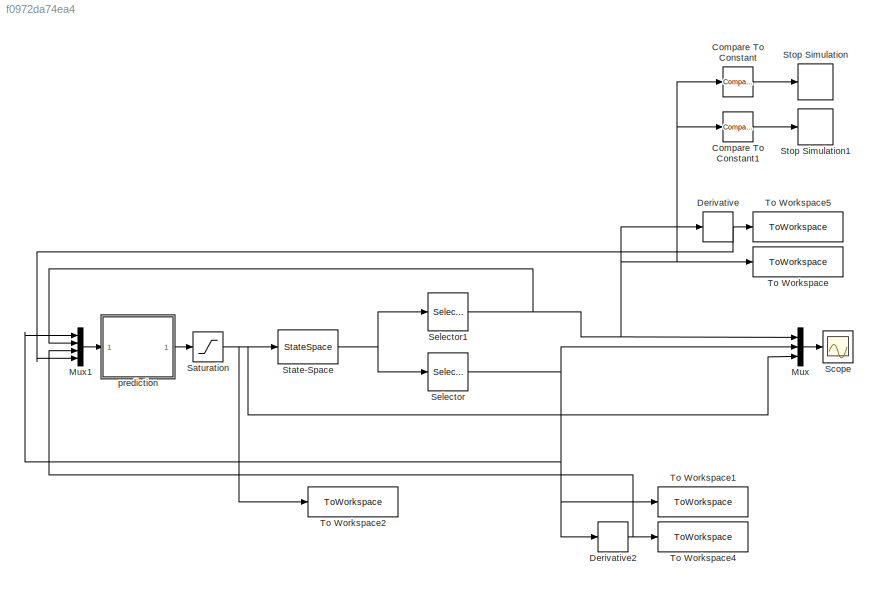
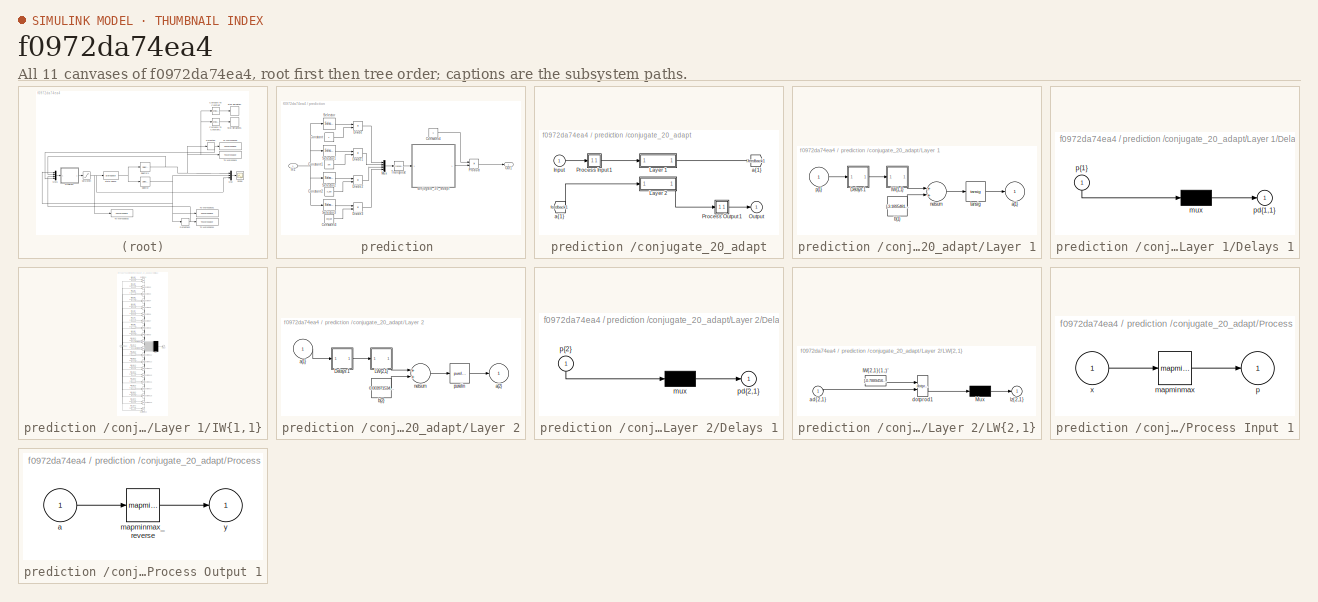
[diagram: thumbnail index - all 11 canvases of the model, root first then tree order]
MODEL slx_f0972da74ea4
KIND model
CONFIG AbsTol = auto
CONFIG EnableMultiTasking = off
CONFIG FixedStep = 0.1
CONFIG MaxStep = auto
CONFIG MinStep = auto
CONFIG RelTol = 1e-3
CONFIG SampleTimeConstraint = Unconstrained
CONFIG Solver = VariableStepAuto
CONFIG SolverName = VariableStepAuto
CONFIG StartTime = 0.0
CONFIG StopTime = 30
BLOCK [Reference] Compare To Constant  REF=simulink/Logic and Bit
Operations/Compare
To Constant
  Ports = [1, 1]
  SourceBlock = simulink/Logic and Bit\nOperations/Compare\nTo Constant
  SourceProductBaseCode = SL
  SourceProductName = Simulink
  SourceType = Compare To Constant
BLOCK [Reference] Compare To Constant1  REF=simulink/Logic and Bit
Operations/Compare
To Constant
  Ports = [1, 1]
  SourceBlock = simulink/Logic and Bit\nOperations/Compare\nTo Constant
  SourceProductBaseCode = SL
  SourceProductName = Simulink
  SourceType = Compare To Constant
BLOCK [Derivative] Derivative
BLOCK [Derivative] Derivative2
BLOCK [Mux] Mux
  DisplayOption = bar
  Inputs = 3
  Ports = [3, 1]
BLOCK [Mux] Mux1
  DisplayOption = bar
  Ports = [4, 1]
BLOCK [Saturate] Saturation
  InputPortMap = u0
  LowerLimit = -7.3704
  Ports = [1, 1]
  UpperLimit = 7.3704
BLOCK [Scope] Scope
  Floating = off
  NumInputPorts = 1
  Ports = [1]
  ScopeSpecificationString = Simulink.scopes.TimeScopeBlockCfg('CurrentConfiguration', extmgr.ConfigurationSet(extmgr.Configuration('Core','General UI',true),extmgr.Configuration('Core','Source UI',true),extmgr.Configuration('Sources','WiredSimulink',true),extmgr.Configuration('Visuals','Time Domain',true,'SerializedDisplays',{struct('MinYLimReal','-13.76424','MaxYLimReal','72.20802','YLabelReal','','MinYLimMag','0.00000','Ma...<+1497ch>
BLOCK [Selector] Selector
  IndexOptions = Index vector (dialog)
  Indices = [1]
  InputPortWidth = 2
  OutputSizes = 1
  Ports = [1, 1]
BLOCK [Selector] Selector1
  IndexOptions = Index vector (dialog)
  Indices = [2]
  InputPortWidth = 2
  OutputSizes = 1
  Ports = [1, 1]
BLOCK [StateSpace] State-Space
  A = A
  B = B
  C = C
  D = D
  InitialCondition = [0 0 -0.3 0]
  Ports = [1, 1]
BLOCK [Stop] Stop Simulation
BLOCK [Stop] Stop Simulation1
BLOCK [ToWorkspace] To Workspace
  FixptAsFi = on
  MaxDataPoints = inf
  Ports = [1]
  SampleTime = -1
  VariableName = phi
BLOCK [ToWorkspace] To Workspace1
  FixptAsFi = on
  MaxDataPoints = inf
  Ports = [1]
  SampleTime = -1
  VariableName = x
BLOCK [ToWorkspace] To Workspace2
  FixptAsFi = on
  MaxDataPoints = inf
  Ports = [1]
  SampleTime = -1
  VariableName = u
BLOCK [ToWorkspace] To Workspace4
  FixptAsFi = on
  MaxDataPoints = inf
  Ports = [1]
  SampleTime = -1
  VariableName = x_dot
BLOCK [ToWorkspace] To Workspace5
  FixptAsFi = on
  MaxDataPoints = inf
  Ports = [1]
  SampleTime = -1
  VariableName = phi_dot
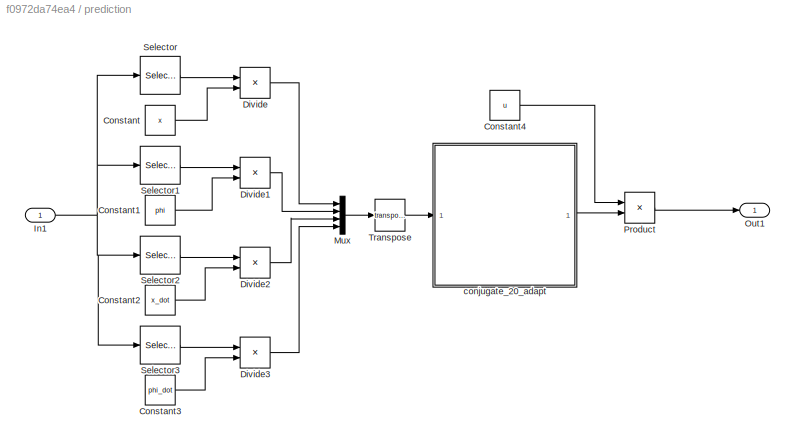
BLOCK [SubSystem] prediction 
  Ports = [1, 1]
  RequestExecContextInheritance = off
BLOCK [Constant] prediction /Constant
  Value = x
BLOCK [Constant] prediction /Constant1
  Value = phi
BLOCK [Constant] prediction /Constant2
  Value = x_dot
BLOCK [Constant] prediction /Constant3
  Value = phi_dot
BLOCK [Constant] prediction /Constant4
  Value = u
BLOCK [Product] prediction /Divide
  InputSameDT = off
  Inputs = */
  OutDataTypeStr = Inherit: Inherit via internal rule
  Ports = [2, 1]
  RndMeth = Floor
  SaturateOnIntegerOverflow = off
BLOCK [Product] prediction /Divide1
  InputSameDT = off
  Inputs = */
  OutDataTypeStr = Inherit: Inherit via internal rule
  Ports = [2, 1]
  RndMeth = Floor
  SaturateOnIntegerOverflow = off
BLOCK [Product] prediction /Divide2
  InputSameDT = off
  Inputs = */
  OutDataTypeStr = Inherit: Inherit via internal rule
  Ports = [2, 1]
  RndMeth = Floor
  SaturateOnIntegerOverflow = off
BLOCK [Product] prediction /Divide3
  InputSameDT = off
  Inputs = */
  OutDataTypeStr = Inherit: Inherit via internal rule
  Ports = [2, 1]
  RndMeth = Floor
  SaturateOnIntegerOverflow = off
BLOCK [Inport] prediction /In1
  IconDisplay = Port number
BLOCK [Mux] prediction /Mux
  DisplayOption = bar
  Ports = [4, 1]
BLOCK [Outport] prediction /Out1
  IconDisplay = Port number
BLOCK [Product] prediction /Product
  InputSameDT = off
  OutDataTypeStr = Inherit: Inherit via internal rule
  Ports = [2, 1]
  RndMeth = Floor
  SaturateOnIntegerOverflow = off
BLOCK [Selector] prediction /Selector
  IndexOptions = Index vector (dialog)
  Indices = [1]
  InputPortWidth = 4
  OutputSizes = 1
  Ports = [1, 1]
BLOCK [Selector] prediction /Selector1
  IndexOptions = Index vector (dialog)
  Indices = [2]
  InputPortWidth = 4
  OutputSizes = 1
  Ports = [1, 1]
BLOCK [Selector] prediction /Selector2
  IndexOptions = Index vector (dialog)
  Indices = [3]
  InputPortWidth = 4
  OutputSizes = 1
  Ports = [1, 1]
BLOCK [Selector] prediction /Selector3
  IndexOptions = Index vector (dialog)
  Indices = [4]
  InputPortWidth = 4
  OutputSizes = 1
  Ports = [1, 1]
BLOCK [Math] prediction /Transpose
  Operator = transpose
  Ports = [1, 1]
  SignedPower = off
BLOCK [SubSystem] prediction /conjugate_20_adapt
  Ports = [1, 1]
  RequestExecContextInheritance = off
BLOCK [From] prediction /conjugate_20_adapt/ a{1} 
  GotoTag = feedback1
BLOCK [Inport] prediction /conjugate_20_adapt/Input
  IconDisplay = Port number
  PortDimensions = 4
BLOCK [SubSystem] prediction /conjugate_20_adapt/Layer 1
  Ports = [1, 1]
  RequestExecContextInheritance = off
BLOCK [SubSystem] prediction /conjugate_20_adapt/Layer 1/Delays 1
  Ports = [1, 1]
  RequestExecContextInheritance = off
BLOCK [Mux] prediction /conjugate_20_adapt/Layer 1/Delays 1/mux
  Inputs = 1
  Ports = [1, 1]
BLOCK [Outport] prediction /conjugate_20_adapt/Layer 1/Delays 1/pd{1,1}
  IconDisplay = Port number
BLOCK [Inport] prediction /conjugate_20_adapt/Layer 1/Delays 1/p{1}
  IconDisplay = Port number
  PortDimensions = 4
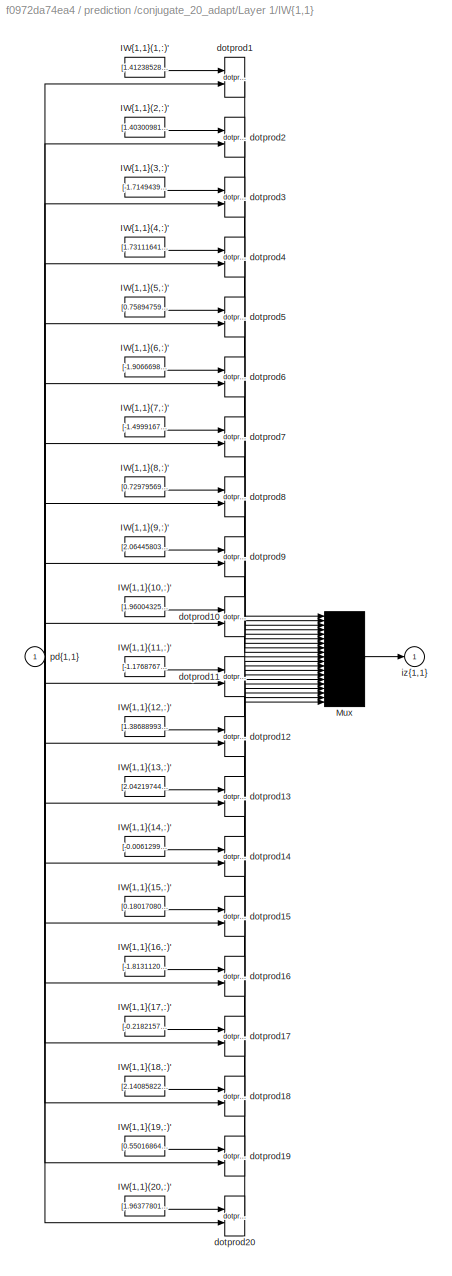
BLOCK [SubSystem] prediction /conjugate_20_adapt/Layer 1/IW{1,1}
  Ports = [1, 1]
  RequestExecContextInheritance = off
BLOCK [Constant] prediction /conjugate_20_adapt/Layer 1/IW{1,1}/IW{1,1}(1,:)'
  Value = [1.4123852893035395705823020762181840837001800537109375;1.6829822397709486292427527587278746068477630615234375;-0.2326034634085416274995594676511245779693126678466796875;1.7864244070414716514250130785512737929821014404296875]
BLOCK [Constant] prediction /conjugate_20_adapt/Layer 1/IW{1,1}/IW{1,1}(10,:)'
  Value = [1.9600432504716722714732668464421294629573822021484375;-1.4462992949855812963022572148474864661693572998046875;1.05467175541510460590188813512213528156280517578125;-1.044701134924057583930334658361971378326416015625]
BLOCK [Constant] prediction /conjugate_20_adapt/Layer 1/IW{1,1}/IW{1,1}(11,:)'
  Value = [-1.1768767170547429490312651978456415235996246337890625;1.2310869520658105358279499341733753681182861328125;-1.095826910209332094581213823403231799602508544921875;1.4690798445607564648440757082425989210605621337890625]
BLOCK [Constant] prediction /conjugate_20_adapt/Layer 1/IW{1,1}/IW{1,1}(12,:)'
  Value = [1.38688993486847511604764804360456764698028564453125;-1.8120693746193621276319163371226750314235687255859375;0.591539311304143833325497325859032571315765380859375;-1.2777031637715896561502404438215307891368865966796875]
BLOCK [Constant] prediction /conjugate_20_adapt/Layer 1/IW{1,1}/IW{1,1}(13,:)'
  Value = [2.042197446353084533399169231415726244449615478515625;-1.21731593170487695232395708444528281688690185546875;0.63463127028361243642251565688638947904109954833984375;1.491294554069237943139114577206782996654510498046875]
BLOCK [Constant] prediction /conjugate_20_adapt/Layer 1/IW{1,1}/IW{1,1}(14,:)'
  Value = [-0.006129914244302801275277037262867452227510511875152587890625;-2.156921645107012341924246356938965618610382080078125;-1.480002177565203691500528293545357882976531982421875;-1.1908403920238141981968738036812283098697662353515625]
BLOCK [Constant] prediction /conjugate_20_adapt/Layer 1/IW{1,1}/IW{1,1}(15,:)'
  Value = [0.1801708034428016469430389179251505993306636810302734375;-2.237472960304680125176446381374262273311614990234375;-1.5299184299487464944178327641566284000873565673828125;0.596736417792846030039299876079894602298736572265625]
BLOCK [Constant] prediction /conjugate_20_adapt/Layer 1/IW{1,1}/IW{1,1}(16,:)'
  Value = [-1.8131120208502837787278849646099843084812164306640625;1.703392576227913846054207169800065457820892333984375;0.08653821318912365001541076026114751584827899932861328125;-0.813045025828483147734004887752234935760498046875]
BLOCK [Constant] prediction /conjugate_20_adapt/Layer 1/IW{1,1}/IW{1,1}(17,:)'
  Value = [-0.2182157848512605025081967369260382838547229766845703125;1.276893348351074930491222403361462056636810302734375;2.251842584393390023222991658258251845836639404296875;-1.625124684680142816972647779039107263088226318359375]
BLOCK [Constant] prediction /conjugate_20_adapt/Layer 1/IW{1,1}/IW{1,1}(18,:)'
  Value = [2.14085822610860621040274054394103586673736572265625;-0.99214422381033617881485042744316160678863525390625;-0.88157374400681265402823783006169833242893218994140625;-1.33471464078851109746892689145170152187347412109375]
BLOCK [Constant] prediction /conjugate_20_adapt/Layer 1/IW{1,1}/IW{1,1}(19,:)'
  Value = [0.55016864968093937005022553421440534293651580810546875;2.778233825119577726781017190660350024700164794921875;1.0580122537423910511478197804535739123821258544921875;0.8311168802762092244762470727437175810337066650390625]
BLOCK [Constant] prediction /conjugate_20_adapt/Layer 1/IW{1,1}/IW{1,1}(2,:)'
  Value = [1.4030098132812753863873922455240972340106964111328125;-2.235081282938943036953105547581799328327178955078125;-0.86955466551557358823032473083003424108028411865234375;-1.2039207403787821615281927734031341969966888427734375]
BLOCK [Constant] prediction /conjugate_20_adapt/Layer 1/IW{1,1}/IW{1,1}(20,:)'
  Value = [1.96377801443758670529859955422580242156982421875;-1.855818808000343711483992592548020184040069580078125;-1.16515007409707305185975201311521232128143310546875;-0.09878567592639626859796209146225010044872760772705078125]
BLOCK [Constant] prediction /conjugate_20_adapt/Layer 1/IW{1,1}/IW{1,1}(3,:)'
  Value = [-1.7149439386108864535884777069441042840480804443359375;1.624112096260762694299728536861948668956756591796875;1.5514427587991670431932789142592810094356536865234375;0.1725381948818423827329837649813271127641201019287109375]
BLOCK [Constant] prediction /conjugate_20_adapt/Layer 1/IW{1,1}/IW{1,1}(4,:)'
  Value = [1.7311164152181526265650290952180512249469757080078125;1.81385435312245224537264220998622477054595947265625;1.2094526173045083705659408224164508283138275146484375;0.8169866707797057703288601260283030569553375244140625]
BLOCK [Constant] prediction /conjugate_20_adapt/Layer 1/IW{1,1}/IW{1,1}(5,:)'
  Value = [0.75894759969078873229619830453884787857532501220703125;0.59840331183818762372794708426226861774921417236328125;-1.55753025290433289029579100315459072589874267578125;2.23573379262498850295060037751682102680206298828125]
BLOCK [Constant] prediction /conjugate_20_adapt/Layer 1/IW{1,1}/IW{1,1}(6,:)'
  Value = [-1.9066698101419456978788957712822593748569488525390625;1.064403876810266158514650669530965387821197509765625;-0.251216796238207418223709055382641963660717010498046875;1.9248265242483511006099661244661547243595123291015625]
BLOCK [Constant] prediction /conjugate_20_adapt/Layer 1/IW{1,1}/IW{1,1}(7,:)'
  Value = [-1.4999167710871954550810869477572850883007049560546875;2.324580304901279870222197132534347474575042724609375;-0.260068099914359252000650712943752296268939971923828125;0.67678273163630142672531064818031154572963714599609375]
BLOCK [Constant] prediction /conjugate_20_adapt/Layer 1/IW{1,1}/IW{1,1}(8,:)'
  Value = [0.72979569424374723940474041228299029171466827392578125;-0.1129727566466618704499325076540117152035236358642578125;0.68566815898659683181648460958967916667461395263671875;-2.78545475582494272970279780565761029720306396484375]
BLOCK [Constant] prediction /conjugate_20_adapt/Layer 1/IW{1,1}/IW{1,1}(9,:)'
  Value = [2.064458038993220778678505666903220117092132568359375;0.622699890355593144164458863087929785251617431640625;1.1307548226647152755930392231675796210765838623046875;-1.5719533808892565129866625284194014966487884521484375]
BLOCK [Mux] prediction /conjugate_20_adapt/Layer 1/IW{1,1}/Mux
  Inputs = 20
  Ports = [20, 1]
BLOCK [Reference] prediction /conjugate_20_adapt/Layer 1/IW{1,1}/dotprod1  REF=neural/Weight Functions/dotprod
  Ports = [2, 1]
  SourceBlock = neural/Weight Functions/dotprod
  SourceProductBaseCode = NN
  SourceProductName = Deep Learning Toolbox
  SourceType = DOTPROD
BLOCK [Reference] prediction /conjugate_20_adapt/Layer 1/IW{1,1}/dotprod10  REF=neural/Weight Functions/dotprod
  Ports = [2, 1]
  SourceBlock = neural/Weight Functions/dotprod
  SourceProductBaseCode = NN
  SourceProductName = Deep Learning Toolbox
  SourceType = DOTPROD
BLOCK [Reference] prediction /conjugate_20_adapt/Layer 1/IW{1,1}/dotprod11  REF=neural/Weight Functions/dotprod
  Ports = [2, 1]
  SourceBlock = neural/Weight Functions/dotprod
  SourceProductBaseCode = NN
  SourceProductName = Deep Learning Toolbox
  SourceType = DOTPROD
BLOCK [Reference] prediction /conjugate_20_adapt/Layer 1/IW{1,1}/dotprod12  REF=neural/Weight Functions/dotprod
  Ports = [2, 1]
  SourceBlock = neural/Weight Functions/dotprod
  SourceProductBaseCode = NN
  SourceProductName = Deep Learning Toolbox
  SourceType = DOTPROD
BLOCK [Reference] prediction /conjugate_20_adapt/Layer 1/IW{1,1}/dotprod13  REF=neural/Weight Functions/dotprod
  Ports = [2, 1]
  SourceBlock = neural/Weight Functions/dotprod
  SourceProductBaseCode = NN
  SourceProductName = Deep Learning Toolbox
  SourceType = DOTPROD
BLOCK [Reference] prediction /conjugate_20_adapt/Layer 1/IW{1,1}/dotprod14  REF=neural/Weight Functions/dotprod
  Ports = [2, 1]
  SourceBlock = neural/Weight Functions/dotprod
  SourceProductBaseCode = NN
  SourceProductName = Deep Learning Toolbox
  SourceType = DOTPROD
BLOCK [Reference] prediction /conjugate_20_adapt/Layer 1/IW{1,1}/dotprod15  REF=neural/Weight Functions/dotprod
  Ports = [2, 1]
  SourceBlock = neural/Weight Functions/dotprod
  SourceProductBaseCode = NN
  SourceProductName = Deep Learning Toolbox
  SourceType = DOTPROD
BLOCK [Reference] prediction /conjugate_20_adapt/Layer 1/IW{1,1}/dotprod16  REF=neural/Weight Functions/dotprod
  Ports = [2, 1]
  SourceBlock = neural/Weight Functions/dotprod
  SourceProductBaseCode = NN
  SourceProductName = Deep Learning Toolbox
  SourceType = DOTPROD
BLOCK [Reference] prediction /conjugate_20_adapt/Layer 1/IW{1,1}/dotprod17  REF=neural/Weight Functions/dotprod
  Ports = [2, 1]
  SourceBlock = neural/Weight Functions/dotprod
  SourceProductBaseCode = NN
  SourceProductName = Deep Learning Toolbox
  SourceType = DOTPROD
BLOCK [Reference] prediction /conjugate_20_adapt/Layer 1/IW{1,1}/dotprod18  REF=neural/Weight Functions/dotprod
  Ports = [2, 1]
  SourceBlock = neural/Weight Functions/dotprod
  SourceProductBaseCode = NN
  SourceProductName = Deep Learning Toolbox
  SourceType = DOTPROD
BLOCK [Reference] prediction /conjugate_20_adapt/Layer 1/IW{1,1}/dotprod19  REF=neural/Weight Functions/dotprod
  Ports = [2, 1]
  SourceBlock = neural/Weight Functions/dotprod
  SourceProductBaseCode = NN
  SourceProductName = Deep Learning Toolbox
  SourceType = DOTPROD
BLOCK [Reference] prediction /conjugate_20_adapt/Layer 1/IW{1,1}/dotprod2  REF=neural/Weight Functions/dotprod
  Ports = [2, 1]
  SourceBlock = neural/Weight Functions/dotprod
  SourceProductBaseCode = NN
  SourceProductName = Deep Learning Toolbox
  SourceType = DOTPROD
BLOCK [Reference] prediction /conjugate_20_adapt/Layer 1/IW{1,1}/dotprod20  REF=neural/Weight Functions/dotprod
  Ports = [2, 1]
  SourceBlock = neural/Weight Functions/dotprod
  SourceProductBaseCode = NN
  SourceProductName = Deep Learning Toolbox
  SourceType = DOTPROD
BLOCK [Reference] prediction /conjugate_20_adapt/Layer 1/IW{1,1}/dotprod3  REF=neural/Weight Functions/dotprod
  Ports = [2, 1]
  SourceBlock = neural/Weight Functions/dotprod
  SourceProductBaseCode = NN
  SourceProductName = Deep Learning Toolbox
  SourceType = DOTPROD
BLOCK [Reference] prediction /conjugate_20_adapt/Layer 1/IW{1,1}/dotprod4  REF=neural/Weight Functions/dotprod
  Ports = [2, 1]
  SourceBlock = neural/Weight Functions/dotprod
  SourceProductBaseCode = NN
  SourceProductName = Deep Learning Toolbox
  SourceType = DOTPROD
BLOCK [Reference] prediction /conjugate_20_adapt/Layer 1/IW{1,1}/dotprod5  REF=neural/Weight Functions/dotprod
  Ports = [2, 1]
  SourceBlock = neural/Weight Functions/dotprod
  SourceProductBaseCode = NN
  SourceProductName = Deep Learning Toolbox
  SourceType = DOTPROD
BLOCK [Reference] prediction /conjugate_20_adapt/Layer 1/IW{1,1}/dotprod6  REF=neural/Weight Functions/dotprod
  Ports = [2, 1]
  SourceBlock = neural/Weight Functions/dotprod
  SourceProductBaseCode = NN
  SourceProductName = Deep Learning Toolbox
  SourceType = DOTPROD
BLOCK [Reference] prediction /conjugate_20_adapt/Layer 1/IW{1,1}/dotprod7  REF=neural/Weight Functions/dotprod
  Ports = [2, 1]
  SourceBlock = neural/Weight Functions/dotprod
  SourceProductBaseCode = NN
  SourceProductName = Deep Learning Toolbox
  SourceType = DOTPROD
BLOCK [Reference] prediction /conjugate_20_adapt/Layer 1/IW{1,1}/dotprod8  REF=neural/Weight Functions/dotprod
  Ports = [2, 1]
  SourceBlock = neural/Weight Functions/dotprod
  SourceProductBaseCode = NN
  SourceProductName = Deep Learning Toolbox
  SourceType = DOTPROD
BLOCK [Reference] prediction /conjugate_20_adapt/Layer 1/IW{1,1}/dotprod9  REF=neural/Weight Functions/dotprod
  Ports = [2, 1]
  SourceBlock = neural/Weight Functions/dotprod
  SourceProductBaseCode = NN
  SourceProductName = Deep Learning Toolbox
  SourceType = DOTPROD
BLOCK [Outport] prediction /conjugate_20_adapt/Layer 1/IW{1,1}/iz{1,1}
  IconDisplay = Port number
BLOCK [Inport] prediction /conjugate_20_adapt/Layer 1/IW{1,1}/pd{1,1}
  IconDisplay = Port number
  PortDimensions = 4
BLOCK [Outport] prediction /conjugate_20_adapt/Layer 1/a{1}
  IconDisplay = Port number
  InitialOutput = [0;0;0;0;0;0;0;0;0;0;0;0;0;0;0;0;0;0;0;0]
BLOCK [Constant] prediction /conjugate_20_adapt/Layer 1/b{1}
  Value = [-3.189548160874988713686661867541261017322540283203125;-2.65391375820820751840756202000193297863006591796875;2.492488530500696963798645811039023101329803466796875;-2.10755705482669863926048492430709302425384521484375;-1.8073368770494993018616014524013735353946685791015625;1.3652450131960127688302009119070135056972503662109375;0.8979655217262909605580034622107632458209991455078125;-0.8056495724915...<+696ch>
BLOCK [Sum] prediction /conjugate_20_adapt/Layer 1/netsum
  Inputs = 2
  Ports = [2, 1]
BLOCK [Inport] prediction /conjugate_20_adapt/Layer 1/p{1}
  IconDisplay = Port number
  PortDimensions = 4
BLOCK [Reference] prediction /conjugate_20_adapt/Layer 1/tansig  REF=neural/Transfer Functions/tansig
  Ports = [1, 1]
  SourceBlock = neural/Transfer Functions/tansig
  SourceProductBaseCode = NN
  SourceProductName = Deep Learning Toolbox
  SourceType = TANSIG
BLOCK [SubSystem] prediction /conjugate_20_adapt/Layer 2
  Ports = [1, 1]
  RequestExecContextInheritance = off
BLOCK [SubSystem] prediction /conjugate_20_adapt/Layer 2/Delays 1
  Ports = [1, 1]
  RequestExecContextInheritance = off
BLOCK [Mux] prediction /conjugate_20_adapt/Layer 2/Delays 1/mux
  Inputs = 1
  Ports = [1, 1]
BLOCK [Outport] prediction /conjugate_20_adapt/Layer 2/Delays 1/pd{2,1}
  IconDisplay = Port number
BLOCK [Inport] prediction /conjugate_20_adapt/Layer 2/Delays 1/p{2}
  IconDisplay = Port number
  PortDimensions = 20
BLOCK [SubSystem] prediction /conjugate_20_adapt/Layer 2/LW{2,1}
  Ports = [1, 1]
  RequestExecContextInheritance = off
BLOCK [Constant] prediction /conjugate_20_adapt/Layer 2/LW{2,1}/IW{2,1}(1,:)'
  Value = [-0.7889456507727405920604724087752401828765869140625;0.54917706167269297878874567686580121517181396484375;0.313037663587927783570563633475103415548801422119140625;0.045507361718834626884699900983832776546478271484375;0.231219592735422863061245379867614246904850006103515625;0.0126153376168142324076359983564543654210865497589111328125;0.03716267576398869787457357460880302824079990386962890625;0.154...<+750ch>
BLOCK [Mux] prediction /conjugate_20_adapt/Layer 2/LW{2,1}/Mux
  Inputs = 1
  Ports = [1, 1]
BLOCK [Inport] prediction /conjugate_20_adapt/Layer 2/LW{2,1}/ad{2,1}
  IconDisplay = Port number
  PortDimensions = 20
BLOCK [Reference] prediction /conjugate_20_adapt/Layer 2/LW{2,1}/dotprod1  REF=neural/Weight Functions/dotprod
  Ports = [2, 1]
  SourceBlock = neural/Weight Functions/dotprod
  SourceProductBaseCode = NN
  SourceProductName = Deep Learning Toolbox
  SourceType = DOTPROD
BLOCK [Outport] prediction /conjugate_20_adapt/Layer 2/LW{2,1}/lz{2,1}
  IconDisplay = Port number
BLOCK [Inport] prediction /conjugate_20_adapt/Layer 2/a{1} 
  IconDisplay = Port number
  PortDimensions = 20
BLOCK [Outport] prediction /conjugate_20_adapt/Layer 2/a{2}
  IconDisplay = Port number
  InitialOutput = 0
BLOCK [Constant] prediction /conjugate_20_adapt/Layer 2/b{2}
  Value = 0.003971534173962987766814958234817822813056409358978271484375
BLOCK [Sum] prediction /conjugate_20_adapt/Layer 2/netsum
  Inputs = 2
  Ports = [2, 1]
BLOCK [Reference] prediction /conjugate_20_adapt/Layer 2/purelin  REF=neural/Transfer Functions/purelin
  Ports = [1, 1]
  SourceBlock = neural/Transfer Functions/purelin
  SourceProductBaseCode = NN
  SourceProductName = Deep Learning Toolbox
  SourceType = PURELIN
BLOCK [Outport] prediction /conjugate_20_adapt/Output
  IconDisplay = Port number
  InitialOutput = 0
BLOCK [SubSystem] prediction /conjugate_20_adapt/Process Input 1
  Ports = [1, 1]
  RequestExecContextInheritance = off
BLOCK [Reference] prediction /conjugate_20_adapt/Process Input 1/mapminmax  REF=neural/Processing Functions/mapminmax
  Ports = [1, 1]
  SourceBlock = neural/Processing Functions/mapminmax
  SourceProductBaseCode = NN
  SourceProductName = Deep Learning Toolbox
  SourceType = MAPMINMAX Preprocess
BLOCK [Outport] prediction /conjugate_20_adapt/Process Input 1/p
  IconDisplay = Port number
  PortDimensions = 4
BLOCK [Inport] prediction /conjugate_20_adapt/Process Input 1/x
  IconDisplay = Port number
  PortDimensions = 4
BLOCK [SubSystem] prediction /conjugate_20_adapt/Process Output 1
  Ports = [1, 1]
  RequestExecContextInheritance = off
BLOCK [Inport] prediction /conjugate_20_adapt/Process Output 1/a
  IconDisplay = Port number
  PortDimensions = 1
BLOCK [Reference] prediction /conjugate_20_adapt/Process Output 1/mapminmax_reverse  REF=neural/Processing Functions/mapminmax_reverse
  Ports = [1, 1]
  SourceBlock = neural/Processing Functions/mapminmax_reverse
  SourceProductBaseCode = NN
  SourceProductName = Deep Learning Toolbox
  SourceType = MAPMINMAX Reverse Process
BLOCK [Outport] prediction /conjugate_20_adapt/Process Output 1/y
  IconDisplay = Port number
  PortDimensions = 1
BLOCK [Goto] prediction /conjugate_20_adapt/a{1}
  GotoTag = feedback1
LINE Compare To Constant1:1 -> Stop Simulation1:1
LINE Compare To Constant:1 -> Stop Simulation:1
NET Derivative2:1 -> Mux1:3, To Workspace4:1
NET Derivative:1 -> Mux1:4, To Workspace5:1
LINE Mux1:1 -> prediction :1
LINE Mux:1 -> Scope:1
NET Saturation:1 -> Mux:3, State-Space:1, To Workspace2:1
NET Selector1:1 -> Compare To Constant1:1, Compare To Constant:1, Derivative:1, Mux1:2, Mux:1, To Workspace:1
NET Selector:1 -> Derivative2:1, Mux1:1, Mux:2, To Workspace1:1
NET State-Space:1 -> Selector1:1, Selector:1
LINE prediction /Constant1:1 -> prediction /Divide1:2
LINE prediction /Constant2:1 -> prediction /Divide2:2
LINE prediction /Constant3:1 -> prediction /Divide3:2
LINE prediction /Constant4:1 -> prediction /Product:1
LINE prediction /Constant:1 -> prediction /Divide:2
LINE prediction /Divide1:1 -> prediction /Mux:2
LINE prediction /Divide2:1 -> prediction /Mux:3
LINE prediction /Divide3:1 -> prediction /Mux:4
LINE prediction /Divide:1 -> prediction /Mux:1
NET prediction /In1:1 -> prediction /Selector1:1, prediction /Selector2:1, prediction /Selector3:1, prediction /Selector:1
LINE prediction /Mux:1 -> prediction /Transpose:1
LINE prediction /Product:1 -> prediction /Out1:1
LINE prediction /Selector1:1 -> prediction /Divide1:1
LINE prediction /Selector2:1 -> prediction /Divide2:1
LINE prediction /Selector3:1 -> prediction /Divide3:1
LINE prediction /Selector:1 -> prediction /Divide:1
LINE prediction /Transpose:1 -> prediction /conjugate_20_adapt:1
LINE prediction /conjugate_20_adapt/ a{1} :1 -> prediction /conjugate_20_adapt/Layer 2:1
LINE prediction /conjugate_20_adapt/Input:1 -> prediction /conjugate_20_adapt/Process Input 1:1
LINE prediction /conjugate_20_adapt/Layer 1/Delays 1/mux:1 -> prediction /conjugate_20_adapt/Layer 1/Delays 1/pd{1,1}:1
LINE prediction /conjugate_20_adapt/Layer 1/Delays 1/p{1}:1 -> prediction /conjugate_20_adapt/Layer 1/Delays 1/mux:1
LINE prediction /conjugate_20_adapt/Layer 1/Delays 1:1 -> prediction /conjugate_20_adapt/Layer 1/IW{1,1}:1
LINE prediction /conjugate_20_adapt/Layer 1/IW{1,1}/IW{1,1}(1,:)':1 -> prediction /conjugate_20_adapt/Layer 1/IW{1,1}/dotprod1:1
LINE prediction /conjugate_20_adapt/Layer 1/IW{1,1}/IW{1,1}(10,:)':1 -> prediction /conjugate_20_adapt/Layer 1/IW{1,1}/dotprod10:1
LINE prediction /conjugate_20_adapt/Layer 1/IW{1,1}/IW{1,1}(11,:)':1 -> prediction /conjugate_20_adapt/Layer 1/IW{1,1}/dotprod11:1
LINE prediction /conjugate_20_adapt/Layer 1/IW{1,1}/IW{1,1}(12,:)':1 -> prediction /conjugate_20_adapt/Layer 1/IW{1,1}/dotprod12:1
LINE prediction /conjugate_20_adapt/Layer 1/IW{1,1}/IW{1,1}(13,:)':1 -> prediction /conjugate_20_adapt/Layer 1/IW{1,1}/dotprod13:1
LINE prediction /conjugate_20_adapt/Layer 1/IW{1,1}/IW{1,1}(14,:)':1 -> prediction /conjugate_20_adapt/Layer 1/IW{1,1}/dotprod14:1
LINE prediction /conjugate_20_adapt/Layer 1/IW{1,1}/IW{1,1}(15,:)':1 -> prediction /conjugate_20_adapt/Layer 1/IW{1,1}/dotprod15:1
LINE prediction /conjugate_20_adapt/Layer 1/IW{1,1}/IW{1,1}(16,:)':1 -> prediction /conjugate_20_adapt/Layer 1/IW{1,1}/dotprod16:1
LINE prediction /conjugate_20_adapt/Layer 1/IW{1,1}/IW{1,1}(17,:)':1 -> prediction /conjugate_20_adapt/Layer 1/IW{1,1}/dotprod17:1
LINE prediction /conjugate_20_adapt/Layer 1/IW{1,1}/IW{1,1}(18,:)':1 -> prediction /conjugate_20_adapt/Layer 1/IW{1,1}/dotprod18:1
LINE prediction /conjugate_20_adapt/Layer 1/IW{1,1}/IW{1,1}(19,:)':1 -> prediction /conjugate_20_adapt/Layer 1/IW{1,1}/dotprod19:1
LINE prediction /conjugate_20_adapt/Layer 1/IW{1,1}/IW{1,1}(2,:)':1 -> prediction /conjugate_20_adapt/Layer 1/IW{1,1}/dotprod2:1
LINE prediction /conjugate_20_adapt/Layer 1/IW{1,1}/IW{1,1}(20,:)':1 -> prediction /conjugate_20_adapt/Layer 1/IW{1,1}/dotprod20:1
LINE prediction /conjugate_20_adapt/Layer 1/IW{1,1}/IW{1,1}(3,:)':1 -> prediction /conjugate_20_adapt/Layer 1/IW{1,1}/dotprod3:1
LINE prediction /conjugate_20_adapt/Layer 1/IW{1,1}/IW{1,1}(4,:)':1 -> prediction /conjugate_20_adapt/Layer 1/IW{1,1}/dotprod4:1
LINE prediction /conjugate_20_adapt/Layer 1/IW{1,1}/IW{1,1}(5,:)':1 -> prediction /conjugate_20_adapt/Layer 1/IW{1,1}/dotprod5:1
LINE prediction /conjugate_20_adapt/Layer 1/IW{1,1}/IW{1,1}(6,:)':1 -> prediction /conjugate_20_adapt/Layer 1/IW{1,1}/dotprod6:1
LINE prediction /conjugate_20_adapt/Layer 1/IW{1,1}/IW{1,1}(7,:)':1 -> prediction /conjugate_20_adapt/Layer 1/IW{1,1}/dotprod7:1
LINE prediction /conjugate_20_adapt/Layer 1/IW{1,1}/IW{1,1}(8,:)':1 -> prediction /conjugate_20_adapt/Layer 1/IW{1,1}/dotprod8:1
LINE prediction /conjugate_20_adapt/Layer 1/IW{1,1}/IW{1,1}(9,:)':1 -> prediction /conjugate_20_adapt/Layer 1/IW{1,1}/dotprod9:1
LINE prediction /conjugate_20_adapt/Layer 1/IW{1,1}/Mux:1 -> prediction /conjugate_20_adapt/Layer 1/IW{1,1}/iz{1,1}:1
LINE prediction /conjugate_20_adapt/Layer 1/IW{1,1}/dotprod10:1 -> prediction /conjugate_20_adapt/Layer 1/IW{1,1}/Mux:10
LINE prediction /conjugate_20_adapt/Layer 1/IW{1,1}/dotprod11:1 -> prediction /conjugate_20_adapt/Layer 1/IW{1,1}/Mux:11
LINE prediction /conjugate_20_adapt/Layer 1/IW{1,1}/dotprod12:1 -> prediction /conjugate_20_adapt/Layer 1/IW{1,1}/Mux:12
LINE prediction /conjugate_20_adapt/Layer 1/IW{1,1}/dotprod13:1 -> prediction /conjugate_20_adapt/Layer 1/IW{1,1}/Mux:13
LINE prediction /conjugate_20_adapt/Layer 1/IW{1,1}/dotprod14:1 -> prediction /conjugate_20_adapt/Layer 1/IW{1,1}/Mux:14
LINE prediction /conjugate_20_adapt/Layer 1/IW{1,1}/dotprod15:1 -> prediction /conjugate_20_adapt/Layer 1/IW{1,1}/Mux:15
LINE prediction /conjugate_20_adapt/Layer 1/IW{1,1}/dotprod16:1 -> prediction /conjugate_20_adapt/Layer 1/IW{1,1}/Mux:16
LINE prediction /conjugate_20_adapt/Layer 1/IW{1,1}/dotprod17:1 -> prediction /conjugate_20_adapt/Layer 1/IW{1,1}/Mux:17
LINE prediction /conjugate_20_adapt/Layer 1/IW{1,1}/dotprod18:1 -> prediction /conjugate_20_adapt/Layer 1/IW{1,1}/Mux:18
LINE prediction /conjugate_20_adapt/Layer 1/IW{1,1}/dotprod19:1 -> prediction /conjugate_20_adapt/Layer 1/IW{1,1}/Mux:19
LINE prediction /conjugate_20_adapt/Layer 1/IW{1,1}/dotprod1:1 -> prediction /conjugate_20_adapt/Layer 1/IW{1,1}/Mux:1
LINE prediction /conjugate_20_adapt/Layer 1/IW{1,1}/dotprod20:1 -> prediction /conjugate_20_adapt/Layer 1/IW{1,1}/Mux:20
LINE prediction /conjugate_20_adapt/Layer 1/IW{1,1}/dotprod2:1 -> prediction /conjugate_20_adapt/Layer 1/IW{1,1}/Mux:2
LINE prediction /conjugate_20_adapt/Layer 1/IW{1,1}/dotprod3:1 -> prediction /conjugate_20_adapt/Layer 1/IW{1,1}/Mux:3
LINE prediction /conjugate_20_adapt/Layer 1/IW{1,1}/dotprod4:1 -> prediction /conjugate_20_adapt/Layer 1/IW{1,1}/Mux:4
LINE prediction /conjugate_20_adapt/Layer 1/IW{1,1}/dotprod5:1 -> prediction /conjugate_20_adapt/Layer 1/IW{1,1}/Mux:5
LINE prediction /conjugate_20_adapt/Layer 1/IW{1,1}/dotprod6:1 -> prediction /conjugate_20_adapt/Layer 1/IW{1,1}/Mux:6
LINE prediction /conjugate_20_adapt/Layer 1/IW{1,1}/dotprod7:1 -> prediction /conjugate_20_adapt/Layer 1/IW{1,1}/Mux:7
LINE prediction /conjugate_20_adapt/Layer 1/IW{1,1}/dotprod8:1 -> prediction /conjugate_20_adapt/Layer 1/IW{1,1}/Mux:8
LINE prediction /conjugate_20_adapt/Layer 1/IW{1,1}/dotprod9:1 -> prediction /conjugate_20_adapt/Layer 1/IW{1,1}/Mux:9
NET prediction /conjugate_20_adapt/Layer 1/IW{1,1}/pd{1,1}:1 -> prediction /conjugate_20_adapt/Layer 1/IW{1,1}/dotprod10:2, prediction /conjugate_20_adapt/Layer 1/IW{1,1}/dotprod11:2, prediction /conjugate_20_adapt/Layer 1/IW{1,1}/dotprod12:2, prediction /conjugate_20_adapt/Layer 1/IW{1,1}/dotprod13:2, prediction /conjugate_20_adapt/Layer 1/IW{1,1}/dotprod14:2, prediction /conjugate_20_adapt/Layer 1/IW{1,1}/dotprod15:2, prediction /conjugate_20_adapt/Layer 1/IW{1,1}/dotprod16:2, prediction /conjugate_20_adapt/Layer 1/IW{1,1}/dotprod17:2, prediction /conjugate_20_adapt/Layer 1/IW{1,1}/dotprod18:2, prediction /conjugate_20_adapt/Layer 1/IW{1,1}/dotprod19:2, prediction /conjugate_20_adapt/Layer 1/IW{1,1}/dotprod1:2, prediction /conjugate_20_adapt/Layer 1/IW{1,1}/dotprod20:2, prediction /conjugate_20_adapt/Layer 1/IW{1,1}/dotprod2:2, prediction /conjugate_20_adapt/Layer 1/IW{1,1}/dotprod3:2, prediction /conjugate_20_adapt/Layer 1/IW{1,1}/dotprod4:2, prediction /conjugate_20_adapt/Layer 1/IW{1,1}/dotprod5:2, prediction /conjugate_20_adapt/Layer 1/IW{1,1}/dotprod6:2, prediction /conjugate_20_adapt/Layer 1/IW{1,1}/dotprod7:2, prediction /conjugate_20_adapt/Layer 1/IW{1,1}/dotprod8:2, prediction /conjugate_20_adapt/Layer 1/IW{1,1}/dotprod9:2
LINE prediction /conjugate_20_adapt/Layer 1/IW{1,1}:1 -> prediction /conjugate_20_adapt/Layer 1/netsum:1
LINE prediction /conjugate_20_adapt/Layer 1/b{1}:1 -> prediction /conjugate_20_adapt/Layer 1/netsum:2
LINE prediction /conjugate_20_adapt/Layer 1/netsum:1 -> prediction /conjugate_20_adapt/Layer 1/tansig:1
LINE prediction /conjugate_20_adapt/Layer 1/p{1}:1 -> prediction /conjugate_20_adapt/Layer 1/Delays 1:1
LINE prediction /conjugate_20_adapt/Layer 1/tansig:1 -> prediction /conjugate_20_adapt/Layer 1/a{1}:1
LINE prediction /conjugate_20_adapt/Layer 1:1 -> prediction /conjugate_20_adapt/a{1}:1
LINE prediction /conjugate_20_adapt/Layer 2/Delays 1/mux:1 -> prediction /conjugate_20_adapt/Layer 2/Delays 1/pd{2,1}:1
LINE prediction /conjugate_20_adapt/Layer 2/Delays 1/p{2}:1 -> prediction /conjugate_20_adapt/Layer 2/Delays 1/mux:1
LINE prediction /conjugate_20_adapt/Layer 2/Delays 1:1 -> prediction /conjugate_20_adapt/Layer 2/LW{2,1}:1
LINE prediction /conjugate_20_adapt/Layer 2/LW{2,1}/IW{2,1}(1,:)':1 -> prediction /conjugate_20_adapt/Layer 2/LW{2,1}/dotprod1:1
LINE prediction /conjugate_20_adapt/Layer 2/LW{2,1}/Mux:1 -> prediction /conjugate_20_adapt/Layer 2/LW{2,1}/lz{2,1}:1
LINE prediction /conjugate_20_adapt/Layer 2/LW{2,1}/ad{2,1}:1 -> prediction /conjugate_20_adapt/Layer 2/LW{2,1}/dotprod1:2
LINE prediction /conjugate_20_adapt/Layer 2/LW{2,1}/dotprod1:1 -> prediction /conjugate_20_adapt/Layer 2/LW{2,1}/Mux:1
LINE prediction /conjugate_20_adapt/Layer 2/LW{2,1}:1 -> prediction /conjugate_20_adapt/Layer 2/netsum:1
LINE prediction /conjugate_20_adapt/Layer 2/a{1} :1 -> prediction /conjugate_20_adapt/Layer 2/Delays 1:1
LINE prediction /conjugate_20_adapt/Layer 2/b{2}:1 -> prediction /conjugate_20_adapt/Layer 2/netsum:2
LINE prediction /conjugate_20_adapt/Layer 2/netsum:1 -> prediction /conjugate_20_adapt/Layer 2/purelin:1
LINE prediction /conjugate_20_adapt/Layer 2/purelin:1 -> prediction /conjugate_20_adapt/Layer 2/a{2}:1
LINE prediction /conjugate_20_adapt/Layer 2:1 -> prediction /conjugate_20_adapt/Process Output 1:1
LINE prediction /conjugate_20_adapt/Process Input 1/mapminmax:1 -> prediction /conjugate_20_adapt/Process Input 1/p:1
LINE prediction /conjugate_20_adapt/Process Input 1/x:1 -> prediction /conjugate_20_adapt/Process Input 1/mapminmax:1
LINE prediction /conjugate_20_adapt/Process Input 1:1 -> prediction /conjugate_20_adapt/Layer 1:1
LINE prediction /conjugate_20_adapt/Process Output 1/a:1 -> prediction /conjugate_20_adapt/Process Output 1/mapminmax_reverse:1
LINE prediction /conjugate_20_adapt/Process Output 1/mapminmax_reverse:1 -> prediction /conjugate_20_adapt/Process Output 1/y:1
LINE prediction /conjugate_20_adapt/Process Output 1:1 -> prediction /conjugate_20_adapt/Output:1
LINE prediction /conjugate_20_adapt:1 -> prediction /Product:2
LINE prediction :1 -> Saturation:1
note: NET lines group one-source signal fan-out (src -> all destinations, sorted); 1:1 wires keep LINE
